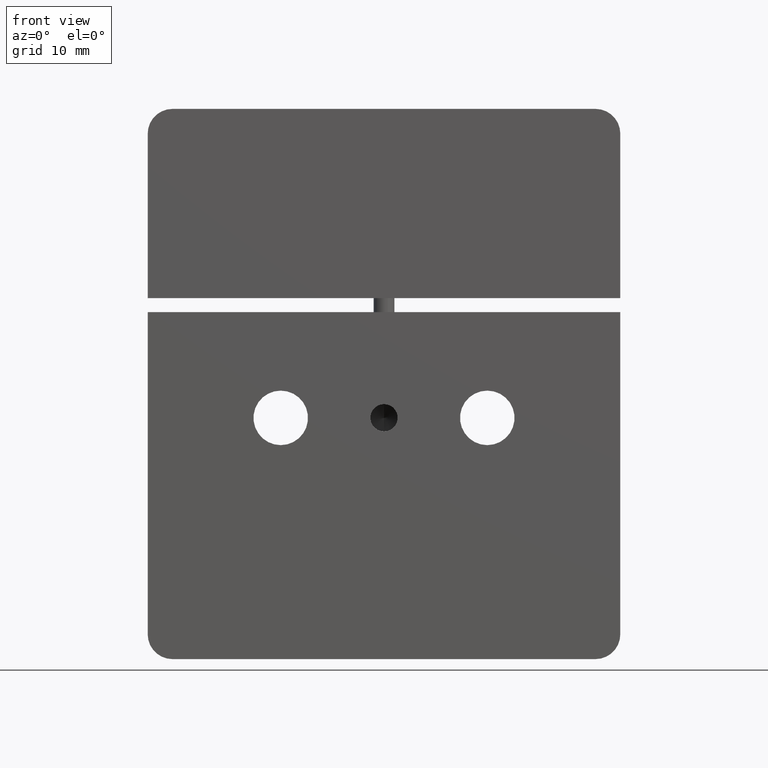
[diagram: clean part render]
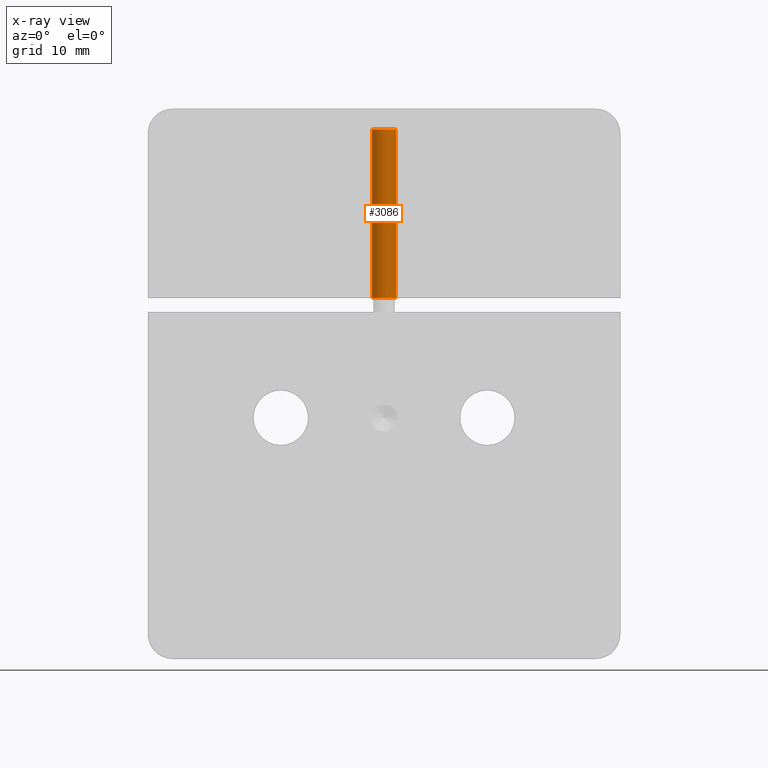
[diagram: x-ray — body ghosted, one internal face saturated and labeled with its STEP entity id]
A machine part, front view, then the same camera in x-ray: the body is ghosted and one INTERNAL B-rep face — a face not visible from any outside direction — is saturated and labeled: STEP entity #3086.
In plain terms, the highlighted cylindrical surface (edge-blend (fillet) strip) has radius 1.45 mm, axis along (0, -0, 1).
Its self-contained STEP definition (entity closure, byte-faithful):
#43 = EDGE_CURVE ( 'NONE', #237, #2259, #597, .T. ) ;
#58 = DIRECTION ( 'NONE',  ( -0.000000000000000000, -0.000000000000000000, -1.000000000000000000 ) ) ;
#166 = FACE_OUTER_BOUND ( 'NONE', #2008, .T. ) ;
#237 = VERTEX_POINT ( 'NONE', #2711 ) ;
#295 = ORIENTED_EDGE ( 'NONE', *, *, #43, .T. ) ;
#328 = CARTESIAN_POINT ( 'NONE',  ( 0.000000000000000000, 4.450000000000003730, -8.950000000000001066 ) ) ;
#597 = CIRCLE ( 'NONE', #2853, 1.449999999999999289 ) ;
#652 = EDGE_CURVE ( 'NONE', #1147, #237, #1273, .T. ) ;
#715 = DIRECTION ( 'NONE',  ( -1.000000000000000000, 0.000000000000000000, 0.000000000000000000 ) ) ;
#924 = CARTESIAN_POINT ( 'NONE',  ( 0.000000000000000000, 4.450000000000003730, 11.44999999999999751 ) ) ;
#1097 = CARTESIAN_POINT ( 'NONE',  ( -1.449999999999999289, 4.450000000000003730, -8.950000000000001066 ) ) ;
#1147 = VERTEX_POINT ( 'NONE', #3189 ) ;
#1273 = LINE ( 'NONE', #3165, #1332 ) ;
#1306 = DIRECTION ( 'NONE',  ( -0.000000000000000000, -0.000000000000000000, -1.000000000000000000 ) ) ;
#1332 = VECTOR ( 'NONE', #1306, 1000.000000000000000 ) ;
#1542 = VECTOR ( 'NONE', #2568, 1000.000000000000000 ) ;
#1591 = ORIENTED_EDGE ( 'NONE', *, *, #3421, .F. ) ;
#1632 = CARTESIAN_POINT ( 'NONE',  ( -1.449999999999996847, 4.450000000000003730, 11.44999999999999751 ) ) ;
#1689 = ORIENTED_EDGE ( 'NONE', *, *, #2836, .F. ) ;
#1816 = VERTEX_POINT ( 'NONE', #1632 ) ;
#1847 = DIRECTION ( 'NONE',  ( -0.000000000000000000, -0.000000000000000000, -1.000000000000000000 ) ) ;
#2008 = EDGE_LOOP ( 'NONE', ( #1591, #2543, #295, #1689 ) ) ;
#2019 = DIRECTION ( 'NONE',  ( -1.000000000000000000, 0.000000000000000000, 0.000000000000000000 ) ) ;
#2036 = DIRECTION ( 'NONE',  ( -1.000000000000000000, 0.000000000000000000, 0.000000000000000000 ) ) ;
#2107 = CYLINDRICAL_SURFACE ( 'NONE', #2528, 1.449999999999996847 ) ;
#2240 = LINE ( 'NONE', #2547, #1542 ) ;
#2259 = VERTEX_POINT ( 'NONE', #1097 ) ;
#2298 = CIRCLE ( 'NONE', #3483, 1.449999999999996847 ) ;
#2528 = AXIS2_PLACEMENT_3D ( 'NONE', #3191, #1847, #715 ) ;
#2543 = ORIENTED_EDGE ( 'NONE', *, *, #652, .T. ) ;
#2547 = CARTESIAN_POINT ( 'NONE',  ( -1.449999999999996847, 4.450000000000003730, -11.45000000000000107 ) ) ;
#2568 = DIRECTION ( 'NONE',  ( -0.000000000000000000, -0.000000000000000000, -1.000000000000000000 ) ) ;
#2602 = DIRECTION ( 'NONE',  ( 0.000000000000000000, 0.000000000000000000, -1.000000000000000000 ) ) ;
#2711 = CARTESIAN_POINT ( 'NONE',  ( 1.449999999999999067, 4.450000000000003730, -8.950000000000001066 ) ) ;
#2836 = EDGE_CURVE ( 'NONE', #1816, #2259, #2240, .T. ) ;
#2853 = AXIS2_PLACEMENT_3D ( 'NONE', #328, #58, #2019 ) ;
#3086 = ADVANCED_FACE ( 'NONE', ( #166 ), #2107, .F. ) ;
#3165 = CARTESIAN_POINT ( 'NONE',  ( 1.449999999999996847, 4.450000000000003730, -11.45000000000000107 ) ) ;
#3189 = CARTESIAN_POINT ( 'NONE',  ( 1.449999999999996847, 4.450000000000003730, 11.44999999999999751 ) ) ;
#3191 = CARTESIAN_POINT ( 'NONE',  ( 0.000000000000000000, 4.450000000000003730, -11.45000000000000107 ) ) ;
#3421 = EDGE_CURVE ( 'NONE', #1147, #1816, #2298, .T. ) ;
#3483 = AXIS2_PLACEMENT_3D ( 'NONE', #924, #2602, #2036 ) ;